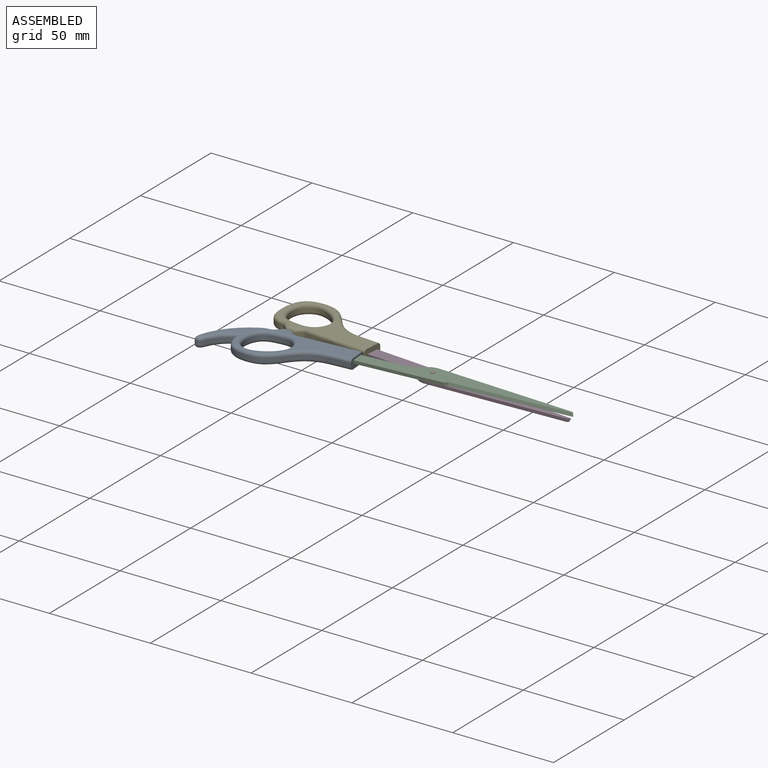
[diagram: assembled view]
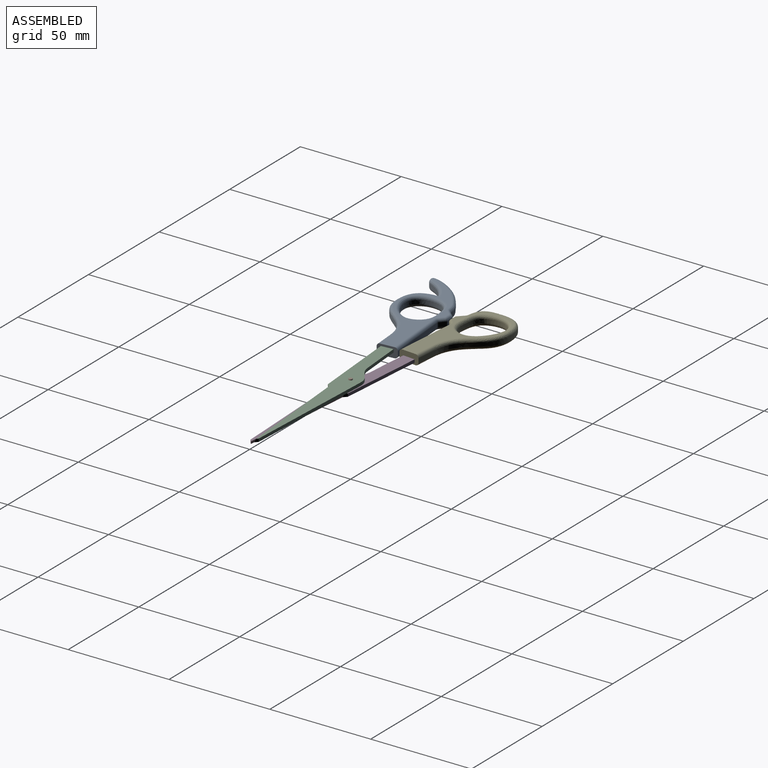
[diagram: assembled view, second angle]
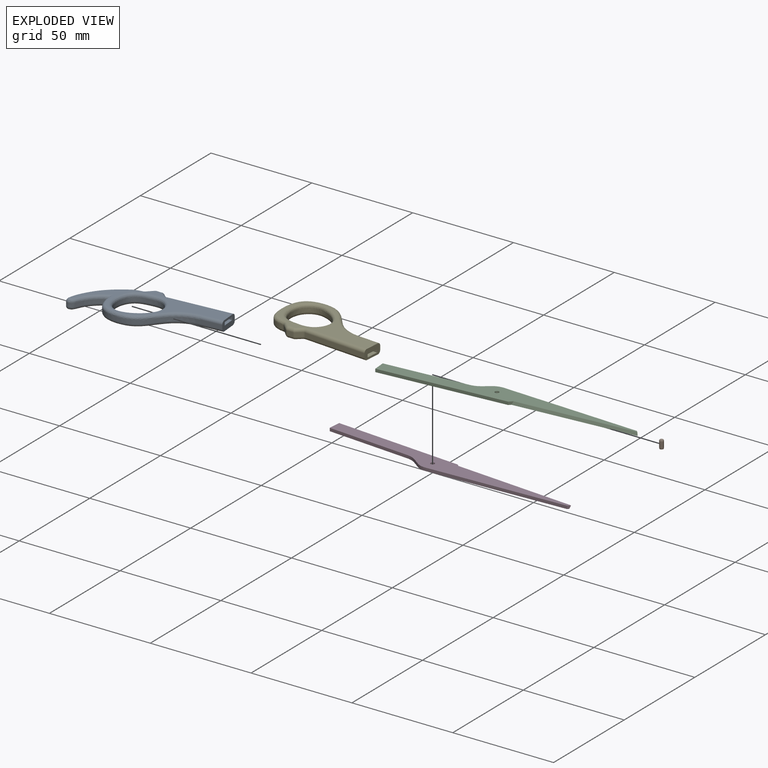
[diagram: exploded view]
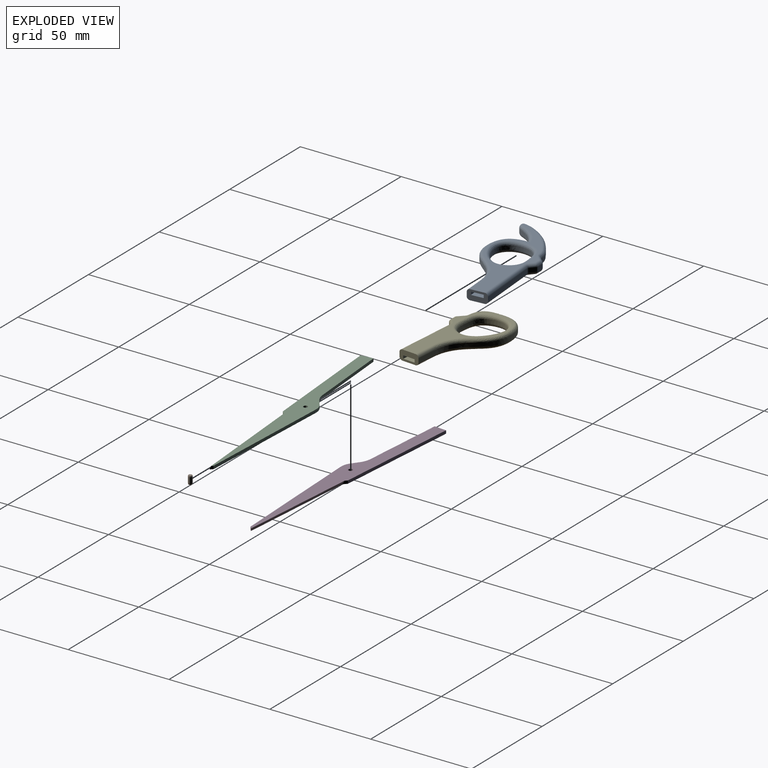
[diagram: exploded view, second angle]
ASSEMBLY  parts=5 mates=4
PART A: 54 faces, bbox 65.4x28.1x5 mm
  f0: extruded ~4.92x2mm, area 10.3mm2, adj f17,f28,f33,f34
  f1: extruded ~12.43x11.79mm, area 38.9mm2, adj f7,f17,f20,f25
  f2: plane 9.97x5mm, normal (1,0.08,0), area 39.1mm2, adj f3,f9,f10,f11,f12,f13,f14,f15
  f3: plane 31.28x2.54mm, normal (-0.08,1,0), area 62.8mm2, adj f2,f40,f47,f48
  f4: plane 2.15x2mm, normal (0.65,0.76,0), area 5.6mm2, adj f41,f45,f48,f51
  f5: plane 2.83x2mm, normal (0,1,0), area 5.7mm2, adj f37,f38,f45,f46
  f6: plane 2.61x2.61mm, normal (-0.71,0.71,0), area 7.4mm2, adj f32,f33,f38,f39
  f7: extruded ~29.78x17.22mm, area 71.6mm2, adj f1,f9,f19,f23
  f8: extruded ~20.34x18.25mm, area 122.8mm2, adj f52,f53
  f9: plane 9.97x2mm, normal (0.08,-1,0), area 20mm2, adj f2,f7,f18,f21
  f10: plane 63.76x25.14mm, normal (0,0,1), area 374.6mm2, adj f2,f18,f19,f20,f22,f26,f28,f30
  f11: plane 63.76x25.14mm, normal (0,0,-1), area 374.8mm2, adj f2,f21,f23,f25,f27,f31,f34,f36
  f12: plane 20.42x7.6mm, normal (0,0,1), area 120mm2, adj f2,f13,f15,f16
  f13: plane 19.93x1.62mm, normal (-0.08,1,0), area 30mm2, adj f2,f12,f14,f16
  f14: plane 20.42x7.6mm, normal (0,0,-1), area 120mm2, adj f2,f13,f15,f16
  f15: plane 19.93x1.62mm, normal (0.08,-1,0), area 30mm2, adj f2,f12,f14,f16
  f16: plane 5.98x1.5mm, normal (1,0.08,0), area 9mm2, adj f12,f13,f14,f15
  f17: extruded ~23.19x16.76mm, area 96.1mm2, adj f0,f1,f22,f24,f26,f27,f29,f31
  f18: cylinder r=1.5mm len=10.09mm, axis (-1,-0.08,0), area 23.6mm2, adj f2,f9,f10,f19
  f19: bspline ~47.74x19.45mm, area 84.3mm2, adj f7,f10,f18,f20
  f20: bspline ~19.27x15.18mm, area 46.5mm2, adj f1,f10,f19,f22
  f21: cylinder r=1.5mm len=10.09mm, axis (1,0.08,0), area 23.6mm2, adj f2,f9,f11,f23
  f22: bspline ~14.87x14.53mm, area 42.8mm2, adj f10,f17,f20,f24
  f23: bspline ~47.74x19.45mm, area 84.3mm2, adj f7,f11,f21,f25
  f24: bspline ~1.5x1.5mm, area 2mm2, adj f17,f22,f26
  f25: bspline ~19.27x15.18mm, area 46.5mm2, adj f1,f11,f23,f27
  f26: bspline ~25.9x24.02mm, area 65.9mm2, adj f10,f17,f24,f28
  f27: bspline ~14.87x14.53mm, area 42.8mm2, adj f11,f17,f25,f29
  f28: bspline ~6.33x3.07mm, area 11.6mm2, adj f0,f10,f26,f30
  f29: bspline ~1.5x1.5mm, area 2mm2, adj f17,f27,f31
  f30: torus R=3mm, axis (0,0,1), area 3.3mm2, adj f10,f28,f32,f33
  f31: bspline ~25.9x24.02mm, area 65.9mm2, adj f11,f17,f29,f34
  f32: cylinder r=1.5mm len=3.67mm, axis (0.71,0.71,0), area 8.7mm2, adj f6,f10,f30,f35
  f33: cylinder r=1.5mm len=2mm, axis (0,0,-1), area 2mm2, adj f0,f6,f30,f36
  f34: bspline ~6.33x3.07mm, area 11.6mm2, adj f0,f11,f31,f36
  f35: sphere r=1.5mm, area 1.8mm2, adj f32,f37,f38
  f36: torus R=3mm, axis (0,0,1), area 3.3mm2, adj f11,f33,f34,f39
  f37: cylinder r=1.5mm len=2.83mm, axis (1,0,0), area 6.7mm2, adj f5,f10,f35,f42
  f38: cylinder r=1.5mm len=2mm, axis (0,0,-1), area 2.4mm2, adj f5,f6,f35,f43
  f39: cylinder r=1.5mm len=3.67mm, axis (-0.71,-0.71,0), area 8.7mm2, adj f6,f11,f36,f43
  f40: cylinder r=1.5mm len=31.4mm, axis (1,0.08,0), area 73.9mm2, adj f2,f3,f10,f44
  f41: cylinder r=1.5mm len=3.12mm, axis (0.76,-0.65,0), area 6.6mm2, adj f4,f10,f42,f44
  f42: sphere r=1.5mm, area 2.3mm2, adj f37,f41,f45
  f43: sphere r=1.5mm, area 1.8mm2, adj f38,f39,f46
  f44: torus R=3mm, axis (0,0,1), area 3.8mm2, adj f10,f40,f41,f48
  f45: cylinder r=1.5mm len=2mm, axis (0,0,1), area 2.1mm2, adj f4,f5,f42,f49
  f46: cylinder r=1.5mm len=2.83mm, axis (-1,0,0), area 6.7mm2, adj f5,f11,f43,f49
  f47: cylinder r=1.5mm len=31.4mm, axis (-1,-0.08,0), area 73.9mm2, adj f2,f3,f11,f50
  f48: cylinder r=1.5mm len=2mm, axis (0,0,-1), area 2.4mm2, adj f3,f4,f44,f50
  f49: sphere r=1.5mm, area 2.3mm2, adj f45,f46,f51
  f50: torus R=3mm, axis (0,0,1), area 3.8mm2, adj f11,f47,f48,f51
  f51: cylinder r=1.5mm len=3.12mm, axis (-0.76,0.65,0), area 6.6mm2, adj f4,f11,f49,f50
  f52: bspline ~23.38x21.28mm, area 152.7mm2, adj f8,f10
  f53: bspline ~23.39x21.28mm, area 152.7mm2, adj f8,f11
PART B: 5 faces, bbox 2x2x4 mm
  f0: cylinder r=1mm len=3mm, axis (0,0,1), area 18.8mm2, adj f1,f3
  f1: cone r=1mm half-angle=15deg, axis (0,0,-1), area 3mm2, adj f0,f2
  f2: plane 1.73x1.73mm, normal (0,0,1), area 2.4mm2, adj f1
  f3: cone r=1mm half-angle=15deg, axis (0,0,1), area 3mm2, adj f0,f4
  f4: plane 1.73x1.73mm, normal (0,0,-1), area 2.4mm2, adj f3
PART C: 11 faces, bbox 123.1x15.3x1.5 mm
  f0: plane 62.37x5.06mm, normal (0.08,-1,0), area 93.9mm2, adj f1,f6,f7,f10
  f1: plane 1.59x1.53mm, normal (0.69,-0.72,0), area 2.7mm2, adj f0,f6,f7,f8
  f2: plane 1.5x1.21mm, normal (0.71,0.71,0), area 2mm2, adj f3,f6,f7,f8
  f3: plane 68x3mm, normal (0.04,1,0), area 102.1mm2, adj f2,f4,f6,f7
  f4: extruded ~12.99x5.72mm, area 21.8mm2, adj f3,f5,f6,f7
  f5: plane 40.87x3.31mm, normal (-0.08,1,0), area 61.5mm2, adj f4,f6,f7,f10
  f6: plane 122.55x15.26mm, normal (0,0,1), area 706.9mm2, adj f0,f1,f2,f3,f4,f5,f8,f9
  f7: plane 123.06x15.26mm, normal (0,0,-1), area 739.1mm2, adj f0,f1,f2,f3,f4,f5,f8,f9
  f8: plane 59.24x5.31mm, normal (0.08,-0.94,0.34), area 94mm2, adj f1,f2,f6,f7
  f9: cylinder r=1mm len=2mm, axis (0,0,-1), area 9.4mm2, adj f6,f7
  f10: plane 5.98x1.5mm, normal (-1,-0.08,0), area 9mm2, adj f0,f5,f6,f7
PART D: same geometry as C
PART E: 44 faces, bbox 52.2x28x5 mm
  f0: plane 9.97x5mm, normal (1,0.08,0), area 39.1mm2, adj f1,f8,f9,f10,f11,f12,f13,f14
  f1: plane 31.28x2.54mm, normal (-0.08,1,0), area 62.8mm2, adj f0,f16,f18,f19
  f2: plane 2.15x2mm, normal (0.65,0.76,0), area 5.6mm2, adj f19,f20,f23,f24
  f3: plane 2.83x2mm, normal (0,1,0), area 5.7mm2, adj f24,f25,f30,f31
  f4: plane 2.61x2.61mm, normal (-0.71,0.71,0), area 7.4mm2, adj f31,f32,f36,f37
  f5: extruded ~24.52x12.5mm, area 74.2mm2, adj f6,f33,f37,f39
  f6: extruded ~29.78x17.22mm, area 71.6mm2, adj f5,f8,f29,f40
  f7: extruded ~20.34x18.25mm, area 122.8mm2, adj f42,f43
  f8: plane 9.97x2mm, normal (0.08,-1,0), area 20mm2, adj f0,f6,f26,f41
  f9: plane 50.63x25.01mm, normal (0,0,1), area 316.7mm2, adj f0,f16,f17,f20,f25,f26,f29,f32
  f10: plane 50.63x25.01mm, normal (0,0,-1), area 316.9mm2, adj f0,f18,f21,f23,f30,f36,f38,f39
  f11: plane 20.42x7.6mm, normal (0,0,1), area 120mm2, adj f0,f12,f14,f15
  f12: plane 19.93x1.62mm, normal (-0.08,1,0), area 30mm2, adj f0,f11,f13,f15
  f13: plane 20.42x7.6mm, normal (0,0,-1), area 120mm2, adj f0,f12,f14,f15
  f14: plane 19.93x1.62mm, normal (0.08,-1,0), area 30mm2, adj f0,f11,f13,f15
  f15: plane 5.98x1.5mm, normal (1,0.08,0), area 9mm2, adj f11,f12,f13,f14
  f16: cylinder r=1.5mm len=31.4mm, axis (1,0.08,0), area 73.9mm2, adj f0,f1,f9,f17
  f17: torus R=3mm, axis (0,0,1), area 3.8mm2, adj f9,f16,f19,f20
  f18: cylinder r=1.5mm len=31.4mm, axis (-1,-0.08,0), area 73.9mm2, adj f0,f1,f10,f21
  f19: cylinder r=1.5mm len=2mm, axis (0,0,-1), area 2.4mm2, adj f1,f2,f17,f21
  f20: cylinder r=1.5mm len=3.12mm, axis (0.76,-0.65,0), area 6.6mm2, adj f2,f9,f17,f22
  f21: torus R=3mm, axis (0,0,1), area 3.8mm2, adj f10,f18,f19,f23
  f22: sphere r=1.5mm, area 1.6mm2, adj f20,f24,f25
  f23: cylinder r=1.5mm len=3.12mm, axis (-0.76,0.65,0), area 6.6mm2, adj f2,f10,f21,f27
  f24: cylinder r=1.5mm len=2mm, axis (0,0,1), area 2.1mm2, adj f2,f3,f22,f27
  f25: cylinder r=1.5mm len=2.83mm, axis (1,0,0), area 6.7mm2, adj f3,f9,f22,f28
  f26: cylinder r=1.5mm len=10.09mm, axis (-1,-0.08,0), area 23.6mm2, adj f0,f8,f9,f29
  f27: sphere r=1.5mm, area 1mm2, adj f23,f24,f30
  f28: sphere r=1.5mm, area 1.8mm2, adj f25,f31,f32
  f29: bspline ~47.74x19.45mm, area 84.3mm2, adj f6,f9,f26,f33
  f30: cylinder r=1.5mm len=2.83mm, axis (-1,0,0), area 6.7mm2, adj f3,f10,f27,f34
  f31: cylinder r=1.5mm len=2mm, axis (0,0,-1), area 2.4mm2, adj f3,f4,f28,f34
  f32: cylinder r=1.5mm len=3.67mm, axis (0.71,0.71,0), area 8.7mm2, adj f4,f9,f28,f35
  f33: bspline ~24.56x19.27mm, area 83.5mm2, adj f5,f9,f29,f35
  f34: sphere r=1.5mm, area 1.8mm2, adj f30,f31,f36
  f35: torus R=3mm, axis (0,0,1), area 3.3mm2, adj f9,f32,f33,f37
  f36: cylinder r=1.5mm len=3.67mm, axis (-0.71,-0.71,0), area 8.7mm2, adj f4,f10,f34,f38
  f37: cylinder r=1.5mm len=2mm, axis (0,0,-1), area 2mm2, adj f4,f5,f35,f38
  f38: torus R=3mm, axis (0,0,1), area 3.3mm2, adj f10,f36,f37,f39
  f39: bspline ~24.56x19.27mm, area 83.5mm2, adj f5,f10,f38,f40
  f40: bspline ~47.74x19.45mm, area 84.3mm2, adj f6,f10,f39,f41
  f41: cylinder r=1.5mm len=10.09mm, axis (1,0.08,0), area 23.6mm2, adj f0,f8,f10,f40
  f42: bspline ~23.39x21.28mm, area 152.7mm2, adj f7,f10
  f43: bspline ~23.38x21.28mm, area 152.7mm2, adj f7,f9
PLACE A t=(-4.98,-50.4,0)mm
PLACE B at identity
PLACE C at identity
PLACE D rot(axis=(1,0,0),180deg) t=(0,0,0)mm
PLACE E rot(axis=(-1,0,0),180deg) t=(-4.98,0.4,0)mm
MATE revolute D.f9 <-> C.f9  axis (0,0,1) through (0,0,0)mm
MATE fastened E.f15 <-> D.f10  axis (1,-0.08,0) through (-53.61,7.01,-0.75)mm
MATE fastened B.f0 <-> D.f9  axis (0,0,1) through (0,0,-1.5)mm
MATE fastened A.f16 <-> C.f10  axis (1,0.08,0) through (-53.61,-7.01,0.75)mm
